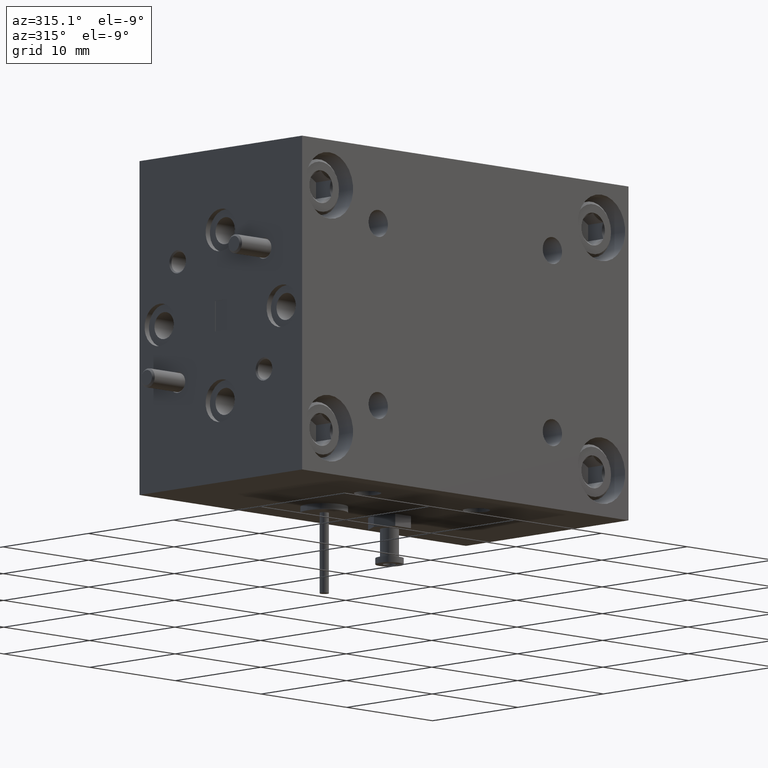
[diagram: clean part render]
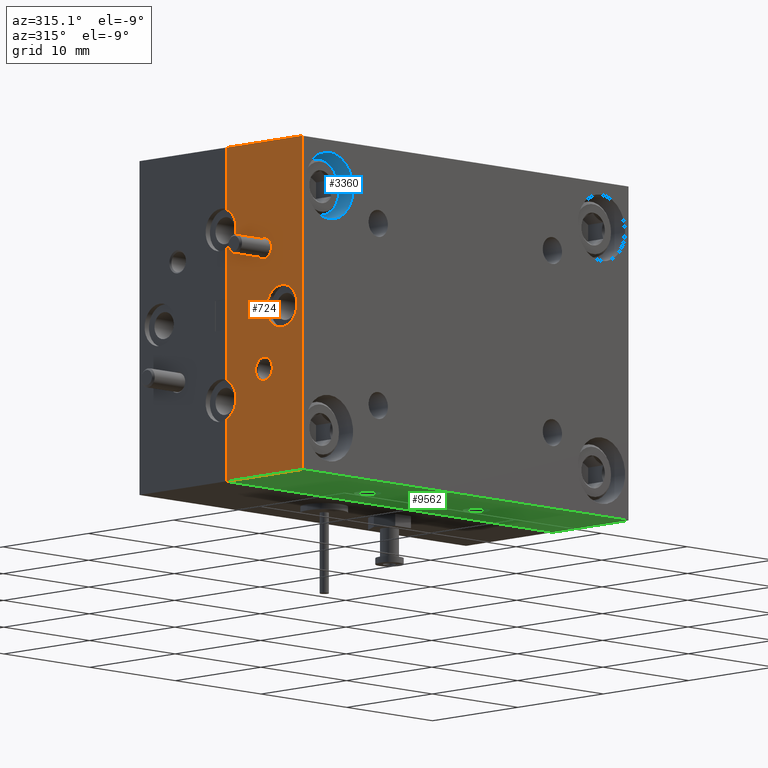
[diagram: same view with three faces highlighted in distinct colors, each labeled with its STEP entity id]
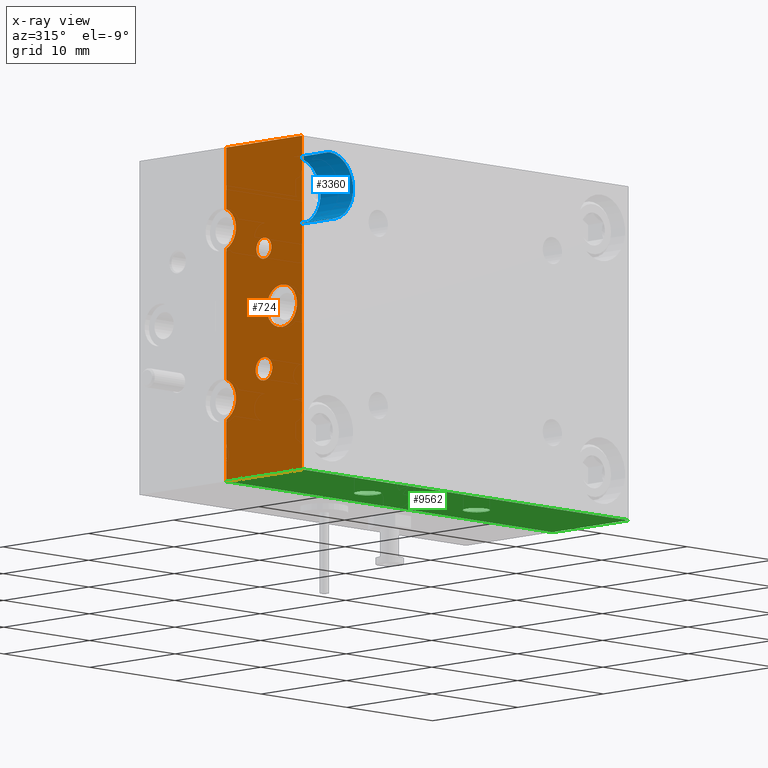
[diagram: x-ray of the same camera — body ghosted, the three highlighted faces saturated]
A machine part, auxiliary view with three faces highlighted in distinct colors.
The next image is the same camera in x-ray (body ghosted, the three faces saturated) — at least one of them is partly hidden behind the body in this view.
Their STEP definitions:

[orange] entity #724 — the highlighted planar face has unit normal (1, -0, 0).
#36 = DIRECTION ( 'NONE',  ( 0.0000000000000000000, 0.0000000000000000000, 1.000000000000000000 ) ) ;
#52 = CARTESIAN_POINT ( 'NONE',  ( -0.5927859036889990800, 0.3500000000000000300, 0.7685766500883519600 ) ) ;
#145 = ORIENTED_EDGE ( 'NONE', *, *, #9844, .F. ) ;
#186 = ORIENTED_EDGE ( 'NONE', *, *, #3760, .F. ) ;
#248 = DIRECTION ( 'NONE',  ( 0.0000000000000000000, 0.0000000000000000000, 1.000000000000000000 ) ) ;
#249 = EDGE_CURVE ( 'NONE', #7141, #8862, #11369, .T. ) ;
#404 = CARTESIAN_POINT ( 'NONE',  ( -0.5927859036889990800, 0.3500000000000000300, 0.7685766500883519600 ) ) ;
#494 = LINE ( 'NONE', #975, #5393 ) ;
#512 = CIRCLE ( 'NONE', #6454, 0.06999999999999993700 ) ;
#666 = VERTEX_POINT ( 'NONE', #7103 ) ;
#724 = ADVANCED_FACE ( 'NONE', ( #6410, #2389, #11936, #4542 ), #1688, .F. ) ;
#726 = DIRECTION ( 'NONE',  ( 0.0000000000000000000, 0.0000000000000000000, 1.000000000000000000 ) ) ;
#871 = DIRECTION ( 'NONE',  ( 0.0000000000000000000, 0.0000000000000000000, -1.000000000000000000 ) ) ;
#975 = CARTESIAN_POINT ( 'NONE',  ( -0.5927859036889990800, 0.3500000000000000300, 0.7685766500883519600 ) ) ;
#976 = CARTESIAN_POINT ( 'NONE',  ( -0.5927859036889990800, 0.0000000000000000000, 0.7685766500883519600 ) ) ;
#1047 = DIRECTION ( 'NONE',  ( -0.0000000000000000000, -0.0000000000000000000, 1.000000000000000000 ) ) ;
#1071 = VECTOR ( 'NONE', #1047, 39.37007874015748100 ) ;
#1349 = DIRECTION ( 'NONE',  ( 0.0000000000000000000, 0.0000000000000000000, 1.000000000000000000 ) ) ;
#1385 = DIRECTION ( 'NONE',  ( -1.000000000000000000, 0.0000000000000000000, 0.0000000000000000000 ) ) ;
#1413 = CARTESIAN_POINT ( 'NONE',  ( -0.5927859036889988600, 0.3500000000000000300, 0.002710134241462212100 ) ) ;
#1418 = CARTESIAN_POINT ( 'NONE',  ( -0.5927859036889990800, 0.3500000000000000300, -0.3314233499116480100 ) ) ;
#1518 = DIRECTION ( 'NONE',  ( -1.000000000000000000, -0.0000000000000000000, -0.0000000000000000000 ) ) ;
#1532 = EDGE_LOOP ( 'NONE', ( #4512, #11744 ) ) ;
#1601 = DIRECTION ( 'NONE',  ( 0.0000000000000000000, 0.0000000000000000000, 1.000000000000000000 ) ) ;
#1659 = ORIENTED_EDGE ( 'NONE', *, *, #4662, .F. ) ;
#1688 = PLANE ( 'NONE',  #11003 ) ;
#1935 = CIRCLE ( 'NONE', #2410, 0.07000000000000000700 ) ;
#1940 = LINE ( 'NONE', #52, #1071 ) ;
#2003 = LINE ( 'NONE', #8217, #6429 ) ;
#2063 = VERTEX_POINT ( 'NONE', #10793 ) ;
#2226 = CIRCLE ( 'NONE', #10353, 0.07000000000000000700 ) ;
#2389 = FACE_BOUND ( 'NONE', #10853, .T. ) ;
#2410 = AXIS2_PLACEMENT_3D ( 'NONE', #3264, #1385, #1349 ) ;
#2446 = VERTEX_POINT ( 'NONE', #5062 ) ;
#2465 = VERTEX_POINT ( 'NONE', #1413 ) ;
#2517 = EDGE_LOOP ( 'NONE', ( #3808, #186 ) ) ;
#2622 = LINE ( 'NONE', #11416, #3482 ) ;
#2703 = EDGE_CURVE ( 'NONE', #11530, #2465, #11975, .T. ) ;
#2866 = DIRECTION ( 'NONE',  ( -0.0000000000000000000, -0.0000000000000000000, 1.000000000000000000 ) ) ;
#2901 = ORIENTED_EDGE ( 'NONE', *, *, #5204, .F. ) ;
#2957 = VERTEX_POINT ( 'NONE', #4509 ) ;
#3258 = VERTEX_POINT ( 'NONE', #1418 ) ;
#3264 = CARTESIAN_POINT ( 'NONE',  ( -0.5927859036889988600, 0.09375000000000002800, 0.2185766500883520600 ) ) ;
#3284 = DIRECTION ( 'NONE',  ( 0.0000000000000000000, 0.0000000000000000000, 1.000000000000000000 ) ) ;
#3347 = CARTESIAN_POINT ( 'NONE',  ( -0.5927859036889988600, 0.09375000000000004200, 0.1485766500883520500 ) ) ;
#3350 = CARTESIAN_POINT ( 'NONE',  ( -0.5927859036889988600, 0.1761262177912834800, 0.01970286787963554700 ) ) ;
#3427 = EDGE_CURVE ( 'NONE', #2465, #7506, #2003, .T. ) ;
#3482 = VECTOR ( 'NONE', #11339, 39.37007874015748100 ) ;
#3760 = EDGE_CURVE ( 'NONE', #2957, #11422, #8323, .T. ) ;
#3767 = ORIENTED_EDGE ( 'NONE', *, *, #3427, .F. ) ;
#3808 = ORIENTED_EDGE ( 'NONE', *, *, #9507, .F. ) ;
#3996 = CARTESIAN_POINT ( 'NONE',  ( -0.5927859036889988600, 0.3749999999999999400, -0.06267334991164794100 ) ) ;
#4128 = DIRECTION ( 'NONE',  ( 0.0000000000000000000, 0.0000000000000000000, 1.000000000000000000 ) ) ;
#4293 = AXIS2_PLACEMENT_3D ( 'NONE', #4727, #5687, #36 ) ;
#4445 = CARTESIAN_POINT ( 'NONE',  ( -0.5927859036889990800, 0.3500000000000000300, 0.7685766500883519600 ) ) ;
#4509 = CARTESIAN_POINT ( 'NONE',  ( -0.5927859036889988600, 0.1761262177912835400, 0.3827004322970685200 ) ) ;
#4512 = ORIENTED_EDGE ( 'NONE', *, *, #9916, .F. ) ;
#4542 = FACE_OUTER_BOUND ( 'NONE', #9289, .T. ) ;
#4662 = EDGE_CURVE ( 'NONE', #666, #6227, #10772, .T. ) ;
#4727 = CARTESIAN_POINT ( 'NONE',  ( -0.5927859036889988600, 0.1761262177912835400, 0.4174504322970685200 ) ) ;
#4753 = CIRCLE ( 'NONE', #4818, 0.03850000000000001300 ) ;
#4818 = AXIS2_PLACEMENT_3D ( 'NONE', #3350, #1518, #1601 ) ;
#4845 = VECTOR ( 'NONE', #2866, 39.37007874015748100 ) ;
#5038 = EDGE_CURVE ( 'NONE', #6227, #8862, #494, .T. ) ;
#5062 = CARTESIAN_POINT ( 'NONE',  ( -0.5927859036889988600, 0.09375000000000002800, 0.2885766500883520900 ) ) ;
#5163 = ORIENTED_EDGE ( 'NONE', *, *, #8891, .F. ) ;
#5204 = EDGE_CURVE ( 'NONE', #2446, #11905, #2226, .T. ) ;
#5393 = VECTOR ( 'NONE', #7451, 39.37007874015748100 ) ;
#5687 = DIRECTION ( 'NONE',  ( -1.000000000000000000, -0.0000000000000000000, -0.0000000000000000000 ) ) ;
#5752 = AXIS2_PLACEMENT_3D ( 'NONE', #6779, #6902, #4128 ) ;
#5838 = AXIS2_PLACEMENT_3D ( 'NONE', #11961, #8351, #8307 ) ;
#6227 = VERTEX_POINT ( 'NONE', #7066 ) ;
#6246 = DIRECTION ( 'NONE',  ( -1.000000000000000000, 0.0000000000000000000, 0.0000000000000000000 ) ) ;
#6373 = VERTEX_POINT ( 'NONE', #7435 ) ;
#6410 = FACE_BOUND ( 'NONE', #1532, .T. ) ;
#6429 = VECTOR ( 'NONE', #10247, 39.37007874015748100 ) ;
#6454 = AXIS2_PLACEMENT_3D ( 'NONE', #10867, #6246, #726 ) ;
#6512 = EDGE_CURVE ( 'NONE', #11905, #2446, #1935, .T. ) ;
#6590 = ORIENTED_EDGE ( 'NONE', *, *, #249, .T. ) ;
#6779 = CARTESIAN_POINT ( 'NONE',  ( -0.5927859036889988600, 0.1761262177912835400, 0.4174504322970685200 ) ) ;
#6817 = CARTESIAN_POINT ( 'NONE',  ( -0.5927859036889988600, 0.3500000000000000300, 0.4344431659352419600 ) ) ;
#6902 = DIRECTION ( 'NONE',  ( -1.000000000000000000, -0.0000000000000000000, -0.0000000000000000000 ) ) ;
#6983 = DIRECTION ( 'NONE',  ( -1.000000000000000000, 0.0000000000000000000, 0.0000000000000000000 ) ) ;
#7023 = CARTESIAN_POINT ( 'NONE',  ( -0.5927859036889988600, 0.3500000000000000300, -0.1280568340647581000 ) ) ;
#7066 = CARTESIAN_POINT ( 'NONE',  ( -0.5927859036889990800, 0.3500000000000000300, 0.7685766500883519600 ) ) ;
#7103 = CARTESIAN_POINT ( 'NONE',  ( -0.5927859036889988600, 0.3500000000000000300, 0.5652101342414621600 ) ) ;
#7141 = VERTEX_POINT ( 'NONE', #10815 ) ;
#7292 = CIRCLE ( 'NONE', #4293, 0.03475000000000001700 ) ;
#7435 = CARTESIAN_POINT ( 'NONE',  ( -0.5927859036889988600, 0.1761262177912834800, -0.01879713212036446600 ) ) ;
#7451 = DIRECTION ( 'NONE',  ( -0.0000000000000000000, -1.000000000000000000, -0.0000000000000000000 ) ) ;
#7506 = VERTEX_POINT ( 'NONE', #6817 ) ;
#7638 = EDGE_CURVE ( 'NONE', #6373, #2063, #4753, .T. ) ;
#7789 = DIRECTION ( 'NONE',  ( -1.000000000000000000, 0.0000000000000000000, 0.0000000000000000000 ) ) ;
#7930 = CARTESIAN_POINT ( 'NONE',  ( -0.5927859036889988600, 0.1761262177912835400, 0.4522004322970685800 ) ) ;
#8217 = CARTESIAN_POINT ( 'NONE',  ( -0.5927859036889990800, 0.3500000000000000300, 0.7685766500883519600 ) ) ;
#8307 = DIRECTION ( 'NONE',  ( 0.0000000000000000000, 0.0000000000000000000, 1.000000000000000000 ) ) ;
#8323 = CIRCLE ( 'NONE', #5752, 0.03475000000000001700 ) ;
#8351 = DIRECTION ( 'NONE',  ( -1.000000000000000000, -0.0000000000000000000, -0.0000000000000000000 ) ) ;
#8862 = VERTEX_POINT ( 'NONE', #10281 ) ;
#8891 = EDGE_CURVE ( 'NONE', #3258, #11530, #1940, .T. ) ;
#8972 = ORIENTED_EDGE ( 'NONE', *, *, #5038, .F. ) ;
#8990 = EDGE_CURVE ( 'NONE', #3258, #7141, #2622, .T. ) ;
#9050 = CIRCLE ( 'NONE', #5838, 0.03850000000000001300 ) ;
#9289 = EDGE_LOOP ( 'NONE', ( #1659, #145, #3767, #10495, #5163, #10931, #6590, #8972 ) ) ;
#9341 = ORIENTED_EDGE ( 'NONE', *, *, #6512, .F. ) ;
#9507 = EDGE_CURVE ( 'NONE', #11422, #2957, #7292, .T. ) ;
#9694 = DIRECTION ( 'NONE',  ( -0.0000000000000000000, -0.0000000000000000000, 1.000000000000000000 ) ) ;
#9844 = EDGE_CURVE ( 'NONE', #7506, #666, #512, .T. ) ;
#9916 = EDGE_CURVE ( 'NONE', #2063, #6373, #9050, .T. ) ;
#10247 = DIRECTION ( 'NONE',  ( -0.0000000000000000000, -0.0000000000000000000, 1.000000000000000000 ) ) ;
#10281 = CARTESIAN_POINT ( 'NONE',  ( -0.5927859036889990800, 0.0000000000000000000, 0.7685766500883519600 ) ) ;
#10353 = AXIS2_PLACEMENT_3D ( 'NONE', #10725, #6983, #3284 ) ;
#10495 = ORIENTED_EDGE ( 'NONE', *, *, #2703, .F. ) ;
#10725 = CARTESIAN_POINT ( 'NONE',  ( -0.5927859036889988600, 0.09375000000000002800, 0.2185766500883520600 ) ) ;
#10772 = LINE ( 'NONE', #404, #11358 ) ;
#10793 = CARTESIAN_POINT ( 'NONE',  ( -0.5927859036889988600, 0.1761262177912834800, 0.05820286787963555700 ) ) ;
#10815 = CARTESIAN_POINT ( 'NONE',  ( -0.5927859036889990800, 0.0000000000000000000, -0.3314233499116480100 ) ) ;
#10853 = EDGE_LOOP ( 'NONE', ( #2901, #9341 ) ) ;
#10867 = CARTESIAN_POINT ( 'NONE',  ( -0.5927859036889988600, 0.3750000000000000600, 0.4998266500883520300 ) ) ;
#10931 = ORIENTED_EDGE ( 'NONE', *, *, #8990, .T. ) ;
#11003 = AXIS2_PLACEMENT_3D ( 'NONE', #4445, #11850, #871 ) ;
#11339 = DIRECTION ( 'NONE',  ( -0.0000000000000000000, -1.000000000000000000, -0.0000000000000000000 ) ) ;
#11358 = VECTOR ( 'NONE', #9694, 39.37007874015748100 ) ;
#11369 = LINE ( 'NONE', #976, #4845 ) ;
#11416 = CARTESIAN_POINT ( 'NONE',  ( -0.5927859036889990800, 0.3500000000000000300, -0.3314233499116480100 ) ) ;
#11422 = VERTEX_POINT ( 'NONE', #7930 ) ;
#11530 = VERTEX_POINT ( 'NONE', #7023 ) ;
#11646 = AXIS2_PLACEMENT_3D ( 'NONE', #3996, #7789, #248 ) ;
#11744 = ORIENTED_EDGE ( 'NONE', *, *, #7638, .F. ) ;
#11850 = DIRECTION ( 'NONE',  ( 1.000000000000000000, -0.0000000000000000000, 0.0000000000000000000 ) ) ;
#11905 = VERTEX_POINT ( 'NONE', #3347 ) ;
#11936 = FACE_BOUND ( 'NONE', #2517, .T. ) ;
#11961 = CARTESIAN_POINT ( 'NONE',  ( -0.5927859036889988600, 0.1761262177912834800, 0.01970286787963554700 ) ) ;
#11975 = CIRCLE ( 'NONE', #11646, 0.07000000000000003400 ) ;

[blue] entity #3360 — the highlighted cylindrical surface (edge-blend (fillet) strip) has radius 2.7788 mm, axis along (-0, -1, -0).
#581 = VERTEX_POINT ( 'NONE', #9924 ) ;
#971 = EDGE_CURVE ( 'NONE', #581, #10653, #3677, .T. ) ;
#1292 = CARTESIAN_POINT ( 'NONE',  ( -0.4677859036889989200, 0.0000000000000000000, 0.7279766500883520000 ) ) ;
#1915 = AXIS2_PLACEMENT_3D ( 'NONE', #10131, #6500, #11024 ) ;
#2124 = DIRECTION ( 'NONE',  ( 0.0000000000000000000, 0.0000000000000000000, -1.000000000000000000 ) ) ;
#2154 = CARTESIAN_POINT ( 'NONE',  ( -0.4677859036889989200, 1.516480271171051900E-032, 0.6185766500883520500 ) ) ;
#3011 = ORIENTED_EDGE ( 'NONE', *, *, #4892, .T. ) ;
#3318 = AXIS2_PLACEMENT_3D ( 'NONE', #2154, #9589, #2124 ) ;
#3360 = ADVANCED_FACE ( 'NONE', ( #4572 ), #3857, .F. ) ;
#3464 = EDGE_CURVE ( 'NONE', #10031, #11412, #6575, .T. ) ;
#3677 = CIRCLE ( 'NONE', #3318, 0.1093999999999997900 ) ;
#3857 = CYLINDRICAL_SURFACE ( 'NONE', #11200, 0.1093999999999998600 ) ;
#4572 = FACE_OUTER_BOUND ( 'NONE', #7181, .T. ) ;
#4892 = EDGE_CURVE ( 'NONE', #10031, #581, #8155, .T. ) ;
#6030 = CARTESIAN_POINT ( 'NONE',  ( -0.4677859036889989200, 0.0000000000000000000, 0.6185766500883520500 ) ) ;
#6500 = DIRECTION ( 'NONE',  ( -0.0000000000000000000, -1.000000000000000000, -0.0000000000000000000 ) ) ;
#6575 = CIRCLE ( 'NONE', #1915, 0.1093999999999999300 ) ;
#6657 = VECTOR ( 'NONE', #8553, 39.37007874015748100 ) ;
#6853 = CARTESIAN_POINT ( 'NONE',  ( -0.4677859036889989200, 1.516480271171051900E-032, 0.7279766500883518800 ) ) ;
#7181 = EDGE_LOOP ( 'NONE', ( #10852, #10877, #3011, #9408 ) ) ;
#8155 = LINE ( 'NONE', #8182, #10917 ) ;
#8182 = CARTESIAN_POINT ( 'NONE',  ( -0.4677859036889989200, 0.0000000000000000000, 0.5091766500883522200 ) ) ;
#8553 = DIRECTION ( 'NONE',  ( -0.0000000000000000000, -1.000000000000000000, -0.0000000000000000000 ) ) ;
#8839 = DIRECTION ( 'NONE',  ( -0.0000000000000000000, -1.000000000000000000, -0.0000000000000000000 ) ) ;
#8870 = CARTESIAN_POINT ( 'NONE',  ( -0.4677859036889989200, 0.1499999999999999900, 0.7279766500883520000 ) ) ;
#9081 = DIRECTION ( 'NONE',  ( -0.0000000000000000000, -1.000000000000000000, -0.0000000000000000000 ) ) ;
#9408 = ORIENTED_EDGE ( 'NONE', *, *, #971, .T. ) ;
#9491 = CARTESIAN_POINT ( 'NONE',  ( -0.4677859036889989200, 0.1499999999999999900, 0.5091766500883522200 ) ) ;
#9589 = DIRECTION ( 'NONE',  ( -0.0000000000000000000, -1.000000000000000000, -0.0000000000000000000 ) ) ;
#9776 = DIRECTION ( 'NONE',  ( 0.0000000000000000000, 0.0000000000000000000, -1.000000000000000000 ) ) ;
#9924 = CARTESIAN_POINT ( 'NONE',  ( -0.4677859036889989200, 1.516480271171051900E-032, 0.5091766500883523300 ) ) ;
#10031 = VERTEX_POINT ( 'NONE', #9491 ) ;
#10131 = CARTESIAN_POINT ( 'NONE',  ( -0.4677859036889989200, 0.1499999999999999900, 0.6185766500883520500 ) ) ;
#10653 = VERTEX_POINT ( 'NONE', #6853 ) ;
#10737 = LINE ( 'NONE', #1292, #6657 ) ;
#10852 = ORIENTED_EDGE ( 'NONE', *, *, #11256, .F. ) ;
#10877 = ORIENTED_EDGE ( 'NONE', *, *, #3464, .F. ) ;
#10917 = VECTOR ( 'NONE', #9081, 39.37007874015748100 ) ;
#11024 = DIRECTION ( 'NONE',  ( 0.0000000000000000000, 0.0000000000000000000, -1.000000000000000000 ) ) ;
#11200 = AXIS2_PLACEMENT_3D ( 'NONE', #6030, #8839, #9776 ) ;
#11256 = EDGE_CURVE ( 'NONE', #11412, #10653, #10737, .T. ) ;
#11412 = VERTEX_POINT ( 'NONE', #8870 ) ;

[green] entity #9562 — the highlighted planar face has unit normal (0, -0, 1).
#59 = EDGE_CURVE ( 'NONE', #11792, #4453, #4553, .T. ) ;
#147 = ORIENTED_EDGE ( 'NONE', *, *, #5572, .F. ) ;
#238 = FACE_OUTER_BOUND ( 'NONE', #7443, .T. ) ;
#373 = ORIENTED_EDGE ( 'NONE', *, *, #8990, .F. ) ;
#481 = DIRECTION ( 'NONE',  ( -0.0000000000000000000, -0.0000000000000000000, -1.000000000000000000 ) ) ;
#946 = LINE ( 'NONE', #9551, #8008 ) ;
#1255 = EDGE_CURVE ( 'NONE', #7785, #7141, #10183, .T. ) ;
#1353 = CIRCLE ( 'NONE', #9184, 0.04449999999999955400 ) ;
#1418 = CARTESIAN_POINT ( 'NONE',  ( -0.5927859036889990800, 0.3500000000000000300, -0.3314233499116480100 ) ) ;
#1422 = ORIENTED_EDGE ( 'NONE', *, *, #4760, .F. ) ;
#1566 = DIRECTION ( 'NONE',  ( -0.0000000000000000000, -0.0000000000000000000, -1.000000000000000000 ) ) ;
#1610 = AXIS2_PLACEMENT_3D ( 'NONE', #7074, #3293, #2419 ) ;
#2090 = DIRECTION ( 'NONE',  ( -1.000000000000000000, 0.0000000000000000000, 0.0000000000000000000 ) ) ;
#2151 = CARTESIAN_POINT ( 'NONE',  ( -0.1372859036889986200, 0.2000000000000000400, -0.3314233499116481200 ) ) ;
#2313 = CARTESIAN_POINT ( 'NONE',  ( 0.4517140963110006200, 0.2000000000000000400, -0.3314233499116482900 ) ) ;
#2419 = DIRECTION ( 'NONE',  ( -1.000000000000000000, 0.0000000000000000000, 0.0000000000000000000 ) ) ;
#2579 = DIRECTION ( 'NONE',  ( -1.000000000000000000, 0.0000000000000000000, 1.821231995776175700E-016 ) ) ;
#2580 = CIRCLE ( 'NONE', #8310, 0.04449999999999955400 ) ;
#2622 = LINE ( 'NONE', #11416, #3482 ) ;
#2692 = FACE_BOUND ( 'NONE', #5751, .T. ) ;
#2771 = VERTEX_POINT ( 'NONE', #2151 ) ;
#3108 = DIRECTION ( 'NONE',  ( 1.000000000000000000, 0.0000000000000000000, -1.821231995776175500E-016 ) ) ;
#3147 = DIRECTION ( 'NONE',  ( 1.821231995776175500E-016, -0.0000000000000000000, 1.000000000000000000 ) ) ;
#3258 = VERTEX_POINT ( 'NONE', #1418 ) ;
#3293 = DIRECTION ( 'NONE',  ( -0.0000000000000000000, -0.0000000000000000000, -1.000000000000000000 ) ) ;
#3452 = AXIS2_PLACEMENT_3D ( 'NONE', #10741, #481, #6999 ) ;
#3482 = VECTOR ( 'NONE', #11339, 39.37007874015748100 ) ;
#3629 = CARTESIAN_POINT ( 'NONE',  ( 0.3627140963110015400, 0.2000000000000000400, -0.3314233499116482900 ) ) ;
#3913 = CARTESIAN_POINT ( 'NONE',  ( 0.4072140963110010800, 0.2000000000000000400, -0.3314233499116482900 ) ) ;
#4355 = VECTOR ( 'NONE', #4940, 39.37007874015748100 ) ;
#4399 = CARTESIAN_POINT ( 'NONE',  ( 0.9072140963110009200, 0.0000000000000000000, -0.3314233499116482900 ) ) ;
#4453 = VERTEX_POINT ( 'NONE', #3629 ) ;
#4553 = CIRCLE ( 'NONE', #3452, 0.04449999999999955400 ) ;
#4760 = EDGE_CURVE ( 'NONE', #6200, #2771, #8015, .T. ) ;
#4797 = ORIENTED_EDGE ( 'NONE', *, *, #59, .F. ) ;
#4933 = ORIENTED_EDGE ( 'NONE', *, *, #10511, .F. ) ;
#4940 = DIRECTION ( 'NONE',  ( -0.0000000000000000000, -1.000000000000000000, -0.0000000000000000000 ) ) ;
#5524 = VECTOR ( 'NONE', #2579, 39.37007874015748100 ) ;
#5572 = EDGE_CURVE ( 'NONE', #4453, #11792, #1353, .T. ) ;
#5751 = EDGE_LOOP ( 'NONE', ( #11897, #1422 ) ) ;
#6113 = EDGE_CURVE ( 'NONE', #9827, #7785, #8412, .T. ) ;
#6158 = ORIENTED_EDGE ( 'NONE', *, *, #6113, .T. ) ;
#6200 = VERTEX_POINT ( 'NONE', #8059 ) ;
#6724 = CARTESIAN_POINT ( 'NONE',  ( 0.9072140963110009200, 0.3500000000000000300, -0.3314233499116482900 ) ) ;
#6999 = DIRECTION ( 'NONE',  ( -1.000000000000000000, 0.0000000000000000000, 0.0000000000000000000 ) ) ;
#7074 = CARTESIAN_POINT ( 'NONE',  ( -0.09278590368899908300, 0.2000000000000000400, -0.3314233499116481200 ) ) ;
#7097 = DIRECTION ( 'NONE',  ( -1.000000000000000000, 0.0000000000000000000, 0.0000000000000000000 ) ) ;
#7141 = VERTEX_POINT ( 'NONE', #10815 ) ;
#7443 = EDGE_LOOP ( 'NONE', ( #10176, #373, #4933, #6158 ) ) ;
#7449 = CARTESIAN_POINT ( 'NONE',  ( 0.9072140963110009200, 0.3500000000000000300, -0.3314233499116482900 ) ) ;
#7673 = PLANE ( 'NONE',  #10110 ) ;
#7785 = VERTEX_POINT ( 'NONE', #11349 ) ;
#8008 = VECTOR ( 'NONE', #8585, 39.37007874015748100 ) ;
#8015 = CIRCLE ( 'NONE', #1610, 0.04449999999999955400 ) ;
#8059 = CARTESIAN_POINT ( 'NONE',  ( -0.04828590368899952900, 0.2000000000000000400, -0.3314233499116481200 ) ) ;
#8291 = EDGE_CURVE ( 'NONE', #2771, #6200, #2580, .T. ) ;
#8310 = AXIS2_PLACEMENT_3D ( 'NONE', #11692, #1566, #7097 ) ;
#8412 = LINE ( 'NONE', #7449, #4355 ) ;
#8585 = DIRECTION ( 'NONE',  ( -1.000000000000000000, 0.0000000000000000000, 1.821231995776175700E-016 ) ) ;
#8990 = EDGE_CURVE ( 'NONE', #3258, #7141, #2622, .T. ) ;
#9184 = AXIS2_PLACEMENT_3D ( 'NONE', #3913, #11290, #2090 ) ;
#9551 = CARTESIAN_POINT ( 'NONE',  ( 0.9072140963110009200, 0.3500000000000000300, -0.3314233499116482900 ) ) ;
#9562 = ADVANCED_FACE ( 'NONE', ( #10354, #2692, #238 ), #7673, .F. ) ;
#9827 = VERTEX_POINT ( 'NONE', #9861 ) ;
#9861 = CARTESIAN_POINT ( 'NONE',  ( 0.9072140963110009200, 0.3500000000000000300, -0.3314233499116482900 ) ) ;
#10110 = AXIS2_PLACEMENT_3D ( 'NONE', #6724, #3147, #3108 ) ;
#10176 = ORIENTED_EDGE ( 'NONE', *, *, #1255, .T. ) ;
#10183 = LINE ( 'NONE', #4399, #5524 ) ;
#10354 = FACE_BOUND ( 'NONE', #11137, .T. ) ;
#10511 = EDGE_CURVE ( 'NONE', #9827, #3258, #946, .T. ) ;
#10741 = CARTESIAN_POINT ( 'NONE',  ( 0.4072140963110010800, 0.2000000000000000400, -0.3314233499116482900 ) ) ;
#10815 = CARTESIAN_POINT ( 'NONE',  ( -0.5927859036889990800, 0.0000000000000000000, -0.3314233499116480100 ) ) ;
#11137 = EDGE_LOOP ( 'NONE', ( #147, #4797 ) ) ;
#11290 = DIRECTION ( 'NONE',  ( -0.0000000000000000000, -0.0000000000000000000, -1.000000000000000000 ) ) ;
#11339 = DIRECTION ( 'NONE',  ( -0.0000000000000000000, -1.000000000000000000, -0.0000000000000000000 ) ) ;
#11349 = CARTESIAN_POINT ( 'NONE',  ( 0.9072140963110009200, 0.0000000000000000000, -0.3314233499116482900 ) ) ;
#11416 = CARTESIAN_POINT ( 'NONE',  ( -0.5927859036889990800, 0.3500000000000000300, -0.3314233499116480100 ) ) ;
#11692 = CARTESIAN_POINT ( 'NONE',  ( -0.09278590368899908300, 0.2000000000000000400, -0.3314233499116481200 ) ) ;
#11792 = VERTEX_POINT ( 'NONE', #2313 ) ;
#11897 = ORIENTED_EDGE ( 'NONE', *, *, #8291, .F. ) ;